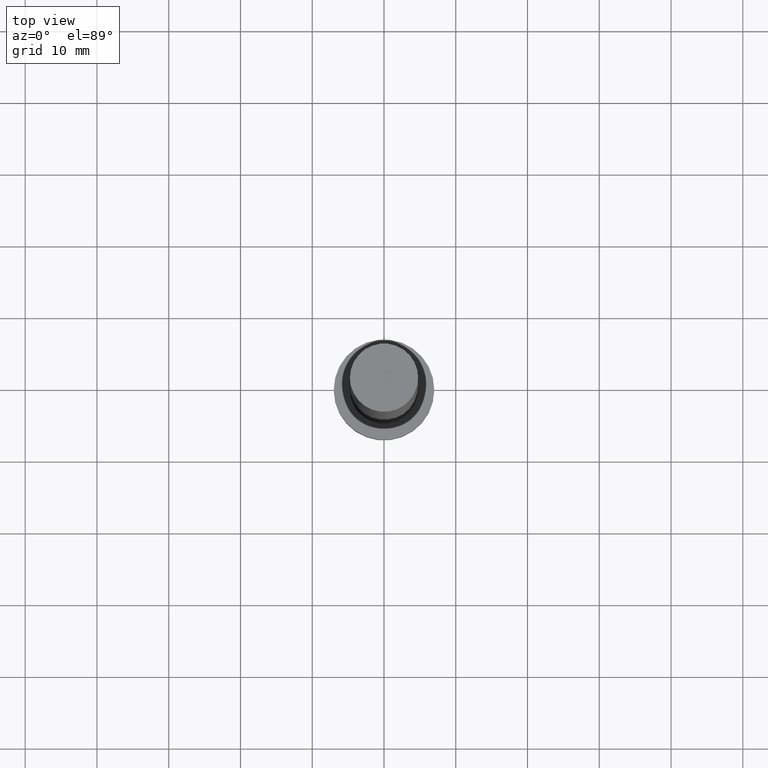
[diagram: clean part render]
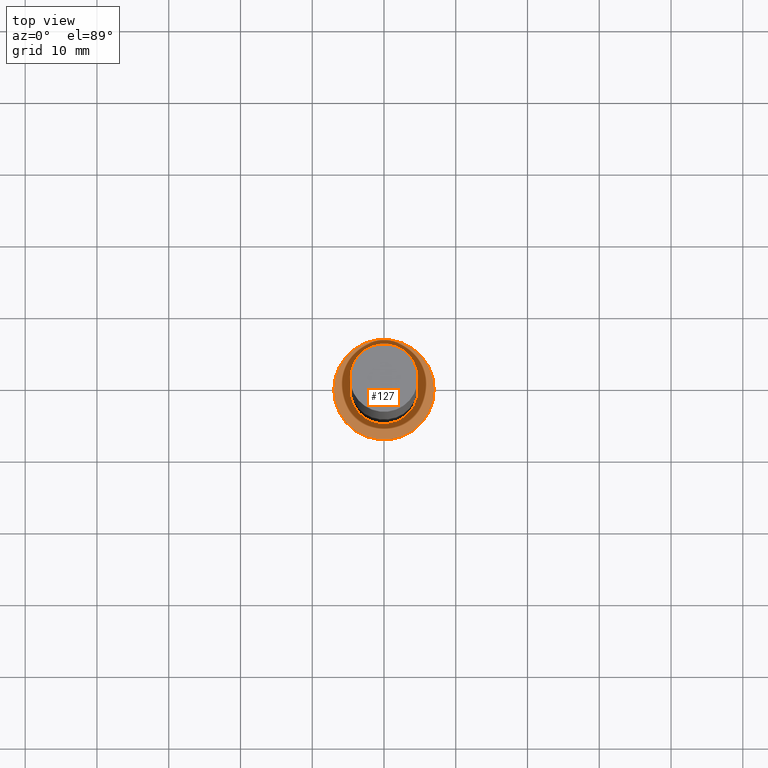
[diagram: same view with one face highlighted and labeled with its STEP entity id]
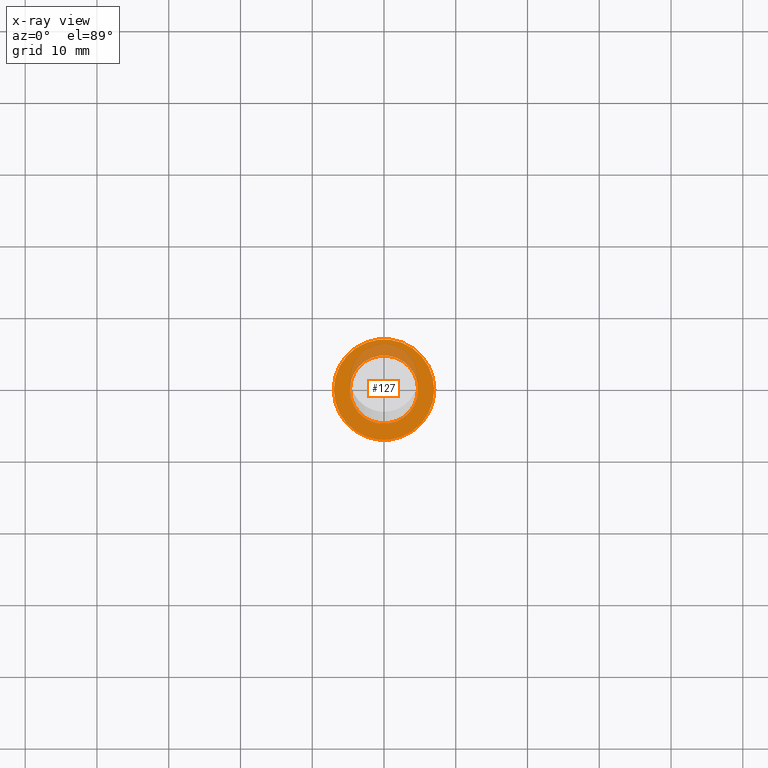
[diagram: x-ray of the same camera — body ghosted, the highlighted face saturated]
A machine part, top view. The second image highlights one B-rep face of the part: STEP entity #127.
The next image is the same camera in x-ray: the body ghosted, the highlighted face saturated — about 19% of this face is hidden behind the body in this view.
In plain terms, the highlighted planar face has unit normal (0, 0, 1).
Its self-contained STEP definition (entity closure, byte-faithful):
#35 = ORIENTED_EDGE ( 'NONE', *, *, #74, .T. ) ;
#37 = AXIS2_PLACEMENT_3D ( 'NONE', #159, #231, #65 ) ;
#39 = ORIENTED_EDGE ( 'NONE', *, *, #242, .F. ) ;
#45 = PLANE ( 'NONE',  #70 ) ;
#61 = CARTESIAN_POINT ( 'NONE',  ( -7.000000000000000000, 0.000000000000000000, 5.000000000000000000 ) ) ;
#65 = DIRECTION ( 'NONE',  ( 1.000000000000000000, 0.000000000000000000, 0.000000000000000000 ) ) ;
#69 = VERTEX_POINT ( 'NONE', #243 ) ;
#70 = AXIS2_PLACEMENT_3D ( 'NONE', #142, #233, #114 ) ;
#72 = CIRCLE ( 'NONE', #241, 7.000000000000000000 ) ;
#74 = EDGE_CURVE ( 'NONE', #106, #136, #72, .T. ) ;
#77 = EDGE_LOOP ( 'NONE', ( #129, #39 ) ) ;
#78 = ORIENTED_EDGE ( 'NONE', *, *, #188, .T. ) ;
#87 = CIRCLE ( 'NONE', #110, 4.750000000000000888 ) ;
#91 = DIRECTION ( 'NONE',  ( 0.000000000000000000, 0.000000000000000000, 1.000000000000000000 ) ) ;
#92 = CARTESIAN_POINT ( 'NONE',  ( 0.000000000000000000, 0.000000000000000000, 5.000000000000000000 ) ) ;
#96 = CIRCLE ( 'NONE', #37, 4.750000000000000888 ) ;
#102 = EDGE_CURVE ( 'NONE', #146, #69, #87, .T. ) ;
#106 = VERTEX_POINT ( 'NONE', #168 ) ;
#110 = AXIS2_PLACEMENT_3D ( 'NONE', #169, #222, #203 ) ;
#114 = DIRECTION ( 'NONE',  ( 1.000000000000000000, 0.000000000000000000, -0.000000000000000000 ) ) ;
#123 = AXIS2_PLACEMENT_3D ( 'NONE', #194, #211, #212 ) ;
#127 = ADVANCED_FACE ( 'NONE', ( #209, #252 ), #45, .T. ) ;
#129 = ORIENTED_EDGE ( 'NONE', *, *, #102, .F. ) ;
#136 = VERTEX_POINT ( 'NONE', #61 ) ;
#142 = CARTESIAN_POINT ( 'NONE',  ( 0.000000000000000000, 0.000000000000000000, 5.000000000000000000 ) ) ;
#146 = VERTEX_POINT ( 'NONE', #174 ) ;
#159 = CARTESIAN_POINT ( 'NONE',  ( 0.000000000000000000, 0.000000000000000000, 5.000000000000000000 ) ) ;
#161 = CIRCLE ( 'NONE', #123, 7.000000000000000000 ) ;
#168 = CARTESIAN_POINT ( 'NONE',  ( 7.000000000000000000, 8.572527594031473190E-16, 5.000000000000000000 ) ) ;
#169 = CARTESIAN_POINT ( 'NONE',  ( 0.000000000000000000, 0.000000000000000000, 5.000000000000000000 ) ) ;
#174 = CARTESIAN_POINT ( 'NONE',  ( -4.750000000000000888, 0.000000000000000000, 5.000000000000000000 ) ) ;
#183 = DIRECTION ( 'NONE',  ( 1.000000000000000000, 0.000000000000000000, 0.000000000000000000 ) ) ;
#188 = EDGE_CURVE ( 'NONE', #136, #106, #161, .T. ) ;
#194 = CARTESIAN_POINT ( 'NONE',  ( 0.000000000000000000, 0.000000000000000000, 5.000000000000000000 ) ) ;
#203 = DIRECTION ( 'NONE',  ( 1.000000000000000000, 0.000000000000000000, 0.000000000000000000 ) ) ;
#209 = FACE_BOUND ( 'NONE', #77, .T. ) ;
#211 = DIRECTION ( 'NONE',  ( 0.000000000000000000, 0.000000000000000000, 1.000000000000000000 ) ) ;
#212 = DIRECTION ( 'NONE',  ( 1.000000000000000000, 0.000000000000000000, 0.000000000000000000 ) ) ;
#222 = DIRECTION ( 'NONE',  ( 0.000000000000000000, 0.000000000000000000, 1.000000000000000000 ) ) ;
#231 = DIRECTION ( 'NONE',  ( 0.000000000000000000, 0.000000000000000000, 1.000000000000000000 ) ) ;
#233 = DIRECTION ( 'NONE',  ( 0.000000000000000000, 0.000000000000000000, 1.000000000000000000 ) ) ;
#241 = AXIS2_PLACEMENT_3D ( 'NONE', #92, #91, #183 ) ;
#242 = EDGE_CURVE ( 'NONE', #69, #146, #96, .T. ) ;
#243 = CARTESIAN_POINT ( 'NONE',  ( 4.750000000000000888, 5.817072295949928412E-16, 5.000000000000000000 ) ) ;
#246 = EDGE_LOOP ( 'NONE', ( #78, #35 ) ) ;
#252 = FACE_OUTER_BOUND ( 'NONE', #246, .T. ) ;